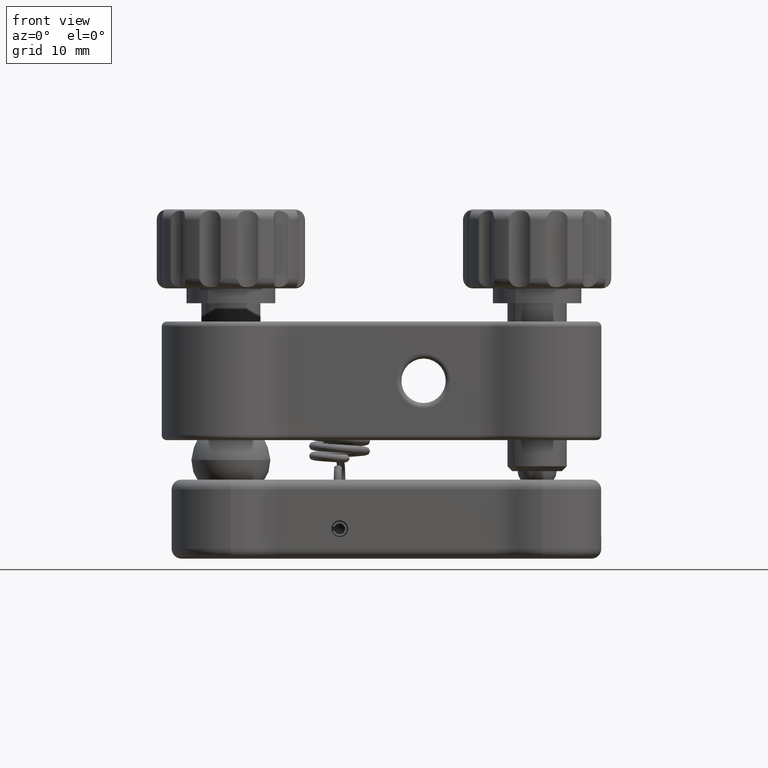
[diagram: clean part render]
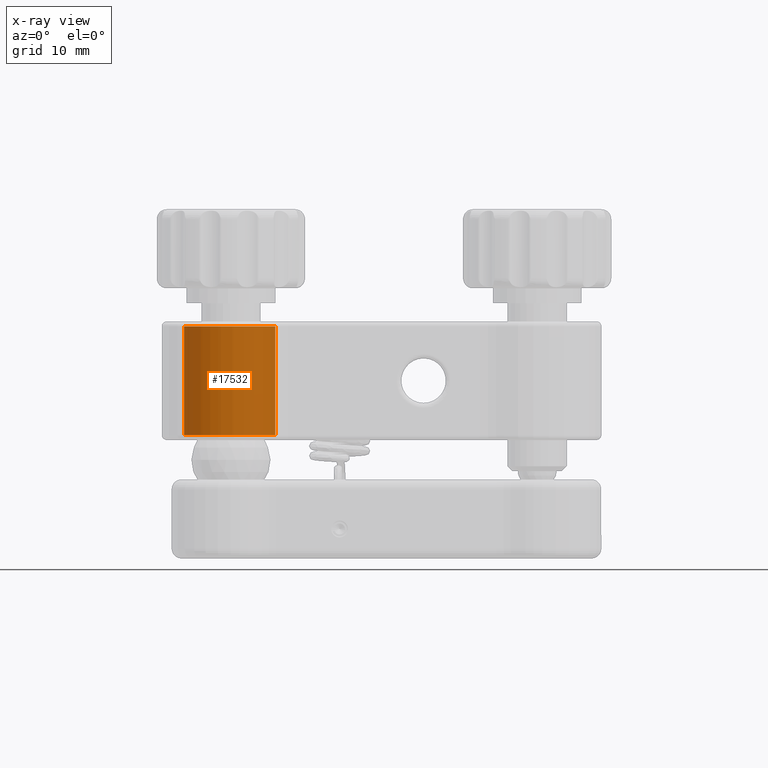
[diagram: x-ray — body ghosted, one internal face saturated and labeled with its STEP entity id]
A machine part, front view, then the same camera in x-ray: the body is ghosted and one INTERNAL B-rep face — a face not visible from any outside direction — is saturated and labeled: STEP entity #17532.
In plain terms, the highlighted cylindrical surface (partial cylindrical patch) has radius 4.75 mm, axis along (-0, 0, 1).
Its self-contained STEP definition (entity closure, byte-faithful):
#16 = EDGE_CURVE ( 'NONE', #150, #25581, #9165, .T. ) ;
#150 = VERTEX_POINT ( 'NONE', #8567 ) ;
#735 = ORIENTED_EDGE ( 'NONE', *, *, #13697, .T. ) ;
#843 = EDGE_LOOP ( 'NONE', ( #12023, #17953, #3405, #735 ) ) ;
#1515 = VECTOR ( 'NONE', #20286, 1000.000000000000000 ) ;
#2777 = EDGE_CURVE ( 'NONE', #25716, #150, #23180, .T. ) ;
#3089 = CARTESIAN_POINT ( 'NONE',  ( 19.69311989411002300, 32.55832984196074900, -5.999999999999958300 ) ) ;
#3405 = ORIENTED_EDGE ( 'NONE', *, *, #16, .T. ) ;
#3859 = CARTESIAN_POINT ( 'NONE',  ( 19.69311989411002300, 32.55832984196074900, -5.499999999999955600 ) ) ;
#4674 = DIRECTION ( 'NONE',  ( 0.9446536096724735800, -0.3280694404127972900, 0.0000000000000000000 ) ) ;
#6175 = CARTESIAN_POINT ( 'NONE',  ( 24.18022454005427200, 30.99999999999996400, -5.499999999999955600 ) ) ;
#6202 = AXIS2_PLACEMENT_3D ( 'NONE', #10296, #14417, #10556 ) ;
#6411 = CARTESIAN_POINT ( 'NONE',  ( 28.66732918599852200, 29.44167015803918000, 5.500000000000041700 ) ) ;
#8567 = CARTESIAN_POINT ( 'NONE',  ( 28.66732918599852200, 29.44167015803918000, -5.499999999999955600 ) ) ;
#9165 = LINE ( 'NONE', #16004, #1515 ) ;
#9889 = VERTEX_POINT ( 'NONE', #21812 ) ;
#10283 = DIRECTION ( 'NONE',  ( -0.9446536096724738000, 0.3280694404127966200, 0.0000000000000000000 ) ) ;
#10296 = CARTESIAN_POINT ( 'NONE',  ( 24.18022454005427200, 30.99999999999996400, 5.500000000000041700 ) ) ;
#10540 = CARTESIAN_POINT ( 'NONE',  ( 24.18022454005427200, 30.99999999999996400, -5.999999999999958300 ) ) ;
#10556 = DIRECTION ( 'NONE',  ( -0.9446536096724738000, 0.3280694404127966200, 0.0000000000000000000 ) ) ;
#11607 = LINE ( 'NONE', #3089, #21248 ) ;
#12023 = ORIENTED_EDGE ( 'NONE', *, *, #18306, .F. ) ;
#13697 = EDGE_CURVE ( 'NONE', #25581, #9889, #24874, .T. ) ;
#14417 = DIRECTION ( 'NONE',  ( 1.812621737787172100E-017, -5.929952670160926900E-017, -1.000000000000000000 ) ) ;
#14551 = CYLINDRICAL_SURFACE ( 'NONE', #20155, 4.749999999999998200 ) ;
#16004 = CARTESIAN_POINT ( 'NONE',  ( 28.66732918599852200, 29.44167015803918000, -5.999999999999958300 ) ) ;
#16167 = FACE_OUTER_BOUND ( 'NONE', #843, .T. ) ;
#17034 = DIRECTION ( 'NONE',  ( -1.812621737787172100E-017, 5.929952670160926900E-017, 1.000000000000000000 ) ) ;
#17532 = ADVANCED_FACE ( 'NONE', ( #16167 ), #14551, .T. ) ;
#17953 = ORIENTED_EDGE ( 'NONE', *, *, #2777, .T. ) ;
#18306 = EDGE_CURVE ( 'NONE', #25716, #9889, #11607, .T. ) ;
#20155 = AXIS2_PLACEMENT_3D ( 'NONE', #10540, #17034, #4674 ) ;
#20286 = DIRECTION ( 'NONE',  ( -1.812621737787172100E-017, 5.929952670160926900E-017, 1.000000000000000000 ) ) ;
#21248 = VECTOR ( 'NONE', #21501, 1000.000000000000000 ) ;
#21501 = DIRECTION ( 'NONE',  ( -1.812621737787172100E-017, 5.929952670160926900E-017, 1.000000000000000000 ) ) ;
#21812 = CARTESIAN_POINT ( 'NONE',  ( 19.69311989411002300, 32.55832984196074900, 5.500000000000041700 ) ) ;
#22558 = DIRECTION ( 'NONE',  ( -1.812621737787172100E-017, 5.929952670160926900E-017, 1.000000000000000000 ) ) ;
#22974 = AXIS2_PLACEMENT_3D ( 'NONE', #6175, #22558, #10283 ) ;
#23180 = CIRCLE ( 'NONE', #22974, 4.749999999999997300 ) ;
#24874 = CIRCLE ( 'NONE', #6202, 4.749999999999997300 ) ;
#25581 = VERTEX_POINT ( 'NONE', #6411 ) ;
#25716 = VERTEX_POINT ( 'NONE', #3859 ) ;